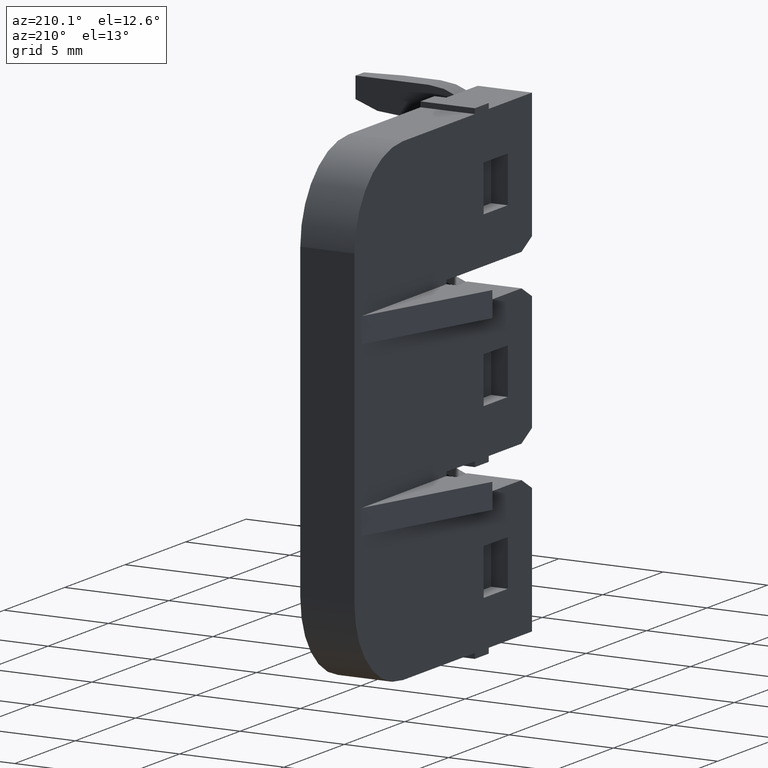
[diagram: clean part render]
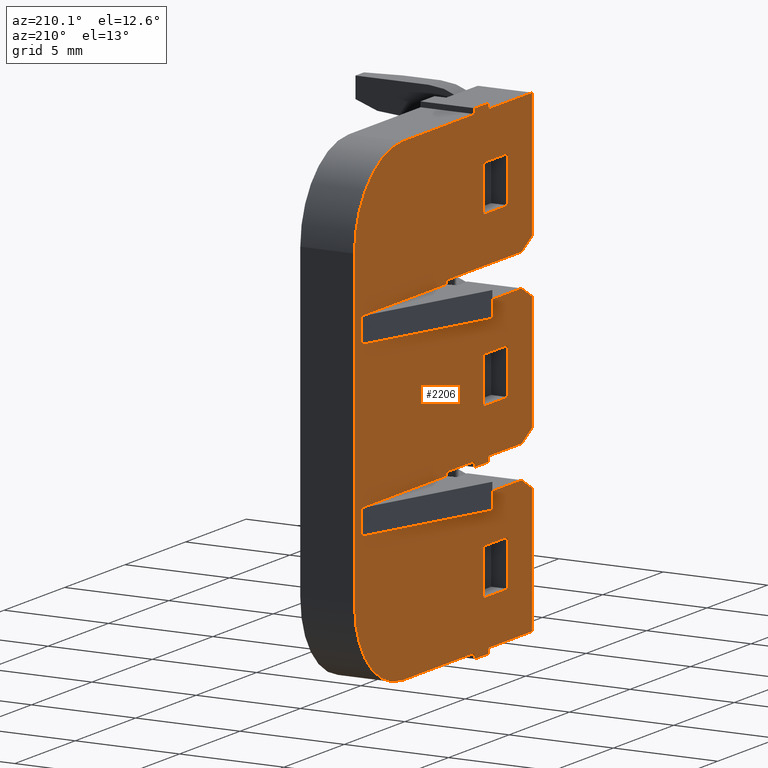
[diagram: same view with one face highlighted and labeled with its STEP entity id]
A machine part, auxiliary view. The second image highlights one B-rep face of the part: STEP entity #2206.
In plain terms, the highlighted planar face has unit normal (1, 0, -0).
Its self-contained STEP definition (entity closure, byte-faithful):
#97 = LINE ( 'NONE', #118, #1239 ) ;
#112 = LINE ( 'NONE', #140, #1243 ) ;
#118 = CARTESIAN_POINT ( 'NONE',  ( 1492.445209356660100, 1094.934526901996200, 15.50000000190685000 ) ) ;
#126 = DIRECTION ( 'NONE',  ( 3.497202527569245500E-015, 9.239259932875879000E-031, 1.000000000000000000 ) ) ;
#140 = CARTESIAN_POINT ( 'NONE',  ( 1492.445209356660100, 1094.934526901996200, -15.54999999809330000 ) ) ;
#149 = LINE ( 'NONE', #204, #1258 ) ;
#154 = CARTESIAN_POINT ( 'NONE',  ( 1492.445209356660100, 1090.934526901996200, 3.350000000000000100 ) ) ;
#157 = DIRECTION ( 'NONE',  ( 0.0000000000000000000, 1.000000000000000000, 8.673617379884027600E-016 ) ) ;
#164 = CARTESIAN_POINT ( 'NONE',  ( 1492.445209356660100, 1094.934526901996200, -15.54999999809330000 ) ) ;
#169 = DIRECTION ( 'NONE',  ( -1.000000000000000000, -3.538835890992685300E-015, 3.497202527569245500E-015 ) ) ;
#172 = DIRECTION ( 'NONE',  ( -3.538835890992685300E-015, 1.000000000000000000, -7.422753022654887400E-029 ) ) ;
#174 = LINE ( 'NONE', #164, #1263 ) ;
#182 = DIRECTION ( 'NONE',  ( 3.538835890992685300E-015, -1.000000000000000000, 7.422753022654887400E-029 ) ) ;
#183 = LINE ( 'NONE', #223, #1279 ) ;
#188 = CARTESIAN_POINT ( 'NONE',  ( 1492.445209356660100, 1094.334526901996000, -7.649999998093229600 ) ) ;
#195 = DIRECTION ( 'NONE',  ( 3.538835890992685300E-015, -1.000000000000000000, 1.096746120592191800E-016 ) ) ;
#200 = DIRECTION ( 'NONE',  ( -3.309741457870194800E-015, -2.521813793387425100E-016, -1.000000000000000000 ) ) ;
#204 = CARTESIAN_POINT ( 'NONE',  ( 1492.445209356660100, 1084.984526901990000, -15.64999999809315100 ) ) ;
#219 = LINE ( 'NONE', #188, #1288 ) ;
#223 = CARTESIAN_POINT ( 'NONE',  ( 1492.445209356660100, 1087.334526901996000, -7.574999998093219700 ) ) ;
#227 = DIRECTION ( 'NONE',  ( 0.0000000000000000000, 0.0000000000000000000, -1.000000000000000000 ) ) ;
#235 = LINE ( 'NONE', #237, #1274 ) ;
#237 = CARTESIAN_POINT ( 'NONE',  ( 1492.445209356660100, 1083.984526901990200, -15.79999999809320100 ) ) ;
#247 = DIRECTION ( 'NONE',  ( 0.0000000000000000000, -1.000000000000000000, -5.306212985340710000E-014 ) ) ;
#256 = LINE ( 'NONE', #269, #1290 ) ;
#264 = DIRECTION ( 'NONE',  ( 3.538835890992685300E-015, -1.000000000000000000, -1.096746120591573800E-016 ) ) ;
#269 = CARTESIAN_POINT ( 'NONE',  ( 1492.445209356660100, 1087.334526901996000, 0.5749999999999999600 ) ) ;
#521 = ORIENTED_EDGE ( 'NONE', *, *, #2094, .T. ) ;
#530 = ORIENTED_EDGE ( 'NONE', *, *, #1945, .T. ) ;
#540 = ORIENTED_EDGE ( 'NONE', *, *, #1989, .T. ) ;
#542 = ORIENTED_EDGE ( 'NONE', *, *, #2095, .F. ) ;
#543 = ORIENTED_EDGE ( 'NONE', *, *, #1767, .T. ) ;
#544 = ORIENTED_EDGE ( 'NONE', *, *, #2104, .F. ) ;
#551 = ORIENTED_EDGE ( 'NONE', *, *, #1934, .T. ) ;
#559 = ORIENTED_EDGE ( 'NONE', *, *, #2123, .T. ) ;
#562 = ORIENTED_EDGE ( 'NONE', *, *, #1962, .T. ) ;
#564 = ORIENTED_EDGE ( 'NONE', *, *, #1926, .F. ) ;
#570 = ORIENTED_EDGE ( 'NONE', *, *, #2092, .T. ) ;
#580 = ORIENTED_EDGE ( 'NONE', *, *, #2040, .F. ) ;
#582 = ORIENTED_EDGE ( 'NONE', *, *, #2129, .F. ) ;
#589 = ORIENTED_EDGE ( 'NONE', *, *, #1974, .F. ) ;
#591 = ORIENTED_EDGE ( 'NONE', *, *, #2097, .T. ) ;
#592 = ORIENTED_EDGE ( 'NONE', *, *, #2017, .F. ) ;
#593 = ORIENTED_EDGE ( 'NONE', *, *, #1879, .T. ) ;
#594 = ORIENTED_EDGE ( 'NONE', *, *, #2085, .T. ) ;
#595 = ORIENTED_EDGE ( 'NONE', *, *, #2126, .T. ) ;
#596 = ORIENTED_EDGE ( 'NONE', *, *, #1964, .T. ) ;
#599 = ORIENTED_EDGE ( 'NONE', *, *, #1918, .F. ) ;
#601 = ORIENTED_EDGE ( 'NONE', *, *, #2146, .T. ) ;
#602 = ORIENTED_EDGE ( 'NONE', *, *, #1995, .T. ) ;
#605 = ORIENTED_EDGE ( 'NONE', *, *, #2131, .T. ) ;
#607 = ORIENTED_EDGE ( 'NONE', *, *, #2116, .T. ) ;
#608 = ORIENTED_EDGE ( 'NONE', *, *, #2093, .T. ) ;
#609 = ORIENTED_EDGE ( 'NONE', *, *, #1990, .T. ) ;
#611 = ORIENTED_EDGE ( 'NONE', *, *, #2000, .T. ) ;
#613 = ORIENTED_EDGE ( 'NONE', *, *, #2138, .T. ) ;
#614 = ORIENTED_EDGE ( 'NONE', *, *, #2297, .T. ) ;
#615 = ORIENTED_EDGE ( 'NONE', *, *, #1940, .T. ) ;
#617 = ORIENTED_EDGE ( 'NONE', *, *, #2145, .F. ) ;
#618 = ORIENTED_EDGE ( 'NONE', *, *, #2277, .T. ) ;
#619 = ORIENTED_EDGE ( 'NONE', *, *, #1955, .F. ) ;
#621 = ORIENTED_EDGE ( 'NONE', *, *, #2133, .T. ) ;
#628 = ORIENTED_EDGE ( 'NONE', *, *, #2147, .T. ) ;
#629 = ORIENTED_EDGE ( 'NONE', *, *, #1998, .T. ) ;
#630 = ORIENTED_EDGE ( 'NONE', *, *, #2096, .T. ) ;
#631 = ORIENTED_EDGE ( 'NONE', *, *, #1984, .F. ) ;
#632 = ORIENTED_EDGE ( 'NONE', *, *, #2067, .F. ) ;
#634 = ORIENTED_EDGE ( 'NONE', *, *, #2077, .F. ) ;
#638 = ORIENTED_EDGE ( 'NONE', *, *, #1880, .T. ) ;
#643 = ORIENTED_EDGE ( 'NONE', *, *, #2065, .F. ) ;
#650 = ORIENTED_EDGE ( 'NONE', *, *, #2072, .T. ) ;
#656 = ORIENTED_EDGE ( 'NONE', *, *, #2140, .T. ) ;
#658 = ORIENTED_EDGE ( 'NONE', *, *, #2119, .T. ) ;
#667 = ORIENTED_EDGE ( 'NONE', *, *, #1954, .T. ) ;
#679 = ORIENTED_EDGE ( 'NONE', *, *, #2066, .T. ) ;
#680 = ORIENTED_EDGE ( 'NONE', *, *, #2083, .F. ) ;
#685 = ORIENTED_EDGE ( 'NONE', *, *, #2127, .T. ) ;
#688 = ORIENTED_EDGE ( 'NONE', *, *, #2059, .T. ) ;
#702 = ORIENTED_EDGE ( 'NONE', *, *, #1983, .T. ) ;
#705 = ORIENTED_EDGE ( 'NONE', *, *, #2114, .T. ) ;
#706 = ORIENTED_EDGE ( 'NONE', *, *, #2130, .T. ) ;
#763 = LINE ( 'NONE', #770, #1683 ) ;
#770 = CARTESIAN_POINT ( 'NONE',  ( 1492.445209356660100, 1082.259529724810100, 15.50000000190685000 ) ) ;
#775 = DIRECTION ( 'NONE',  ( -3.497202527569245500E-015, -1.237602582263238000E-029, -1.000000000000000000 ) ) ;
#1075 = CARTESIAN_POINT ( 'NONE',  ( 1492.445209356660100, 1094.934526901996200, 7.349999999999998800 ) ) ;
#1077 = DIRECTION ( 'NONE',  ( -3.538835890992685300E-015, 1.000000000000000000, 1.225863708862687000E-029 ) ) ;
#1078 = DIRECTION ( 'NONE',  ( 0.0000000000000000000, 1.000000000000000000, 0.0000000000000000000 ) ) ;
#1088 = CARTESIAN_POINT ( 'NONE',  ( 1492.445209356660100, 1090.934526901996200, -11.54999999809322000 ) ) ;
#1096 = DIRECTION ( 'NONE',  ( -1.000000000000000000, -3.538835890992685300E-015, 3.497202527569245500E-015 ) ) ;
#1105 = LINE ( 'NONE', #1075, #1220 ) ;
#1174 = AXIS2_PLACEMENT_3D ( 'NONE', #1088, #1096, #1078 ) ;
#1213 = CIRCLE ( 'NONE', #1174, 4.000000000000003600 ) ;
#1220 = VECTOR ( 'NONE', #1077, 1000.000000000000000 ) ;
#1236 = CIRCLE ( 'NONE', #1260, 4.000000000000003600 ) ;
#1239 = VECTOR ( 'NONE', #126, 1000.000000000000000 ) ;
#1243 = VECTOR ( 'NONE', #172, 1000.000000000000000 ) ;
#1258 = VECTOR ( 'NONE', #227, 1000.000000000000000 ) ;
#1260 = AXIS2_PLACEMENT_3D ( 'NONE', #154, #169, #157 ) ;
#1263 = VECTOR ( 'NONE', #182, 1000.000000000000000 ) ;
#1274 = VECTOR ( 'NONE', #247, 1000.000000000000000 ) ;
#1279 = VECTOR ( 'NONE', #195, 1000.000000000000000 ) ;
#1280 = VECTOR ( 'NONE', #3640, 1000.000000000000000 ) ;
#1288 = VECTOR ( 'NONE', #200, 1000.000000000000000 ) ;
#1290 = VECTOR ( 'NONE', #264, 1000.000000000000000 ) ;
#1300 = VECTOR ( 'NONE', #3605, 1000.000000000000000 ) ;
#1301 = VECTOR ( 'NONE', #3636, 1000.000000000000000 ) ;
#1312 = VECTOR ( 'NONE', #3669, 1000.000000000000000 ) ;
#1314 = VECTOR ( 'NONE', #3672, 1000.000000000000000 ) ;
#1325 = VECTOR ( 'NONE', #3686, 1000.000000000000000 ) ;
#1327 = VECTOR ( 'NONE', #3658, 1000.000000000000000 ) ;
#1335 = VECTOR ( 'NONE', #3695, 1000.000000000000000 ) ;
#1339 = VECTOR ( 'NONE', #3666, 1000.000000000000000 ) ;
#1355 = VECTOR ( 'NONE', #3853, 1000.000000000000000 ) ;
#1358 = VECTOR ( 'NONE', #3927, 1000.000000000000000 ) ;
#1361 = VECTOR ( 'NONE', #3788, 1000.000000000000000 ) ;
#1379 = VECTOR ( 'NONE', #3898, 1000.000000000000100 ) ;
#1380 = VECTOR ( 'NONE', #3871, 1000.000000000000000 ) ;
#1385 = VECTOR ( 'NONE', #3863, 1000.000000000000000 ) ;
#1386 = VECTOR ( 'NONE', #3893, 1000.000000000000000 ) ;
#1400 = VECTOR ( 'NONE', #3949, 1000.000000000000000 ) ;
#1401 = VECTOR ( 'NONE', #3951, 1000.000000000000000 ) ;
#1405 = VECTOR ( 'NONE', #3950, 1000.000000000000000 ) ;
#1407 = VECTOR ( 'NONE', #3938, 1000.000000000000000 ) ;
#1410 = VECTOR ( 'NONE', #3937, 1000.000000000000000 ) ;
#1414 = VECTOR ( 'NONE', #3957, 1000.000000000000000 ) ;
#1415 = VECTOR ( 'NONE', #3966, 1000.000000000000000 ) ;
#1416 = VECTOR ( 'NONE', #3969, 1000.000000000000100 ) ;
#1423 = VECTOR ( 'NONE', #4096, 1000.000000000000000 ) ;
#1425 = VECTOR ( 'NONE', #4105, 1000.000000000000000 ) ;
#1429 = VECTOR ( 'NONE', #4166, 1000.000000000000000 ) ;
#1437 = VECTOR ( 'NONE', #4060, 1000.000000000000000 ) ;
#1440 = VECTOR ( 'NONE', #4029, 1000.000000000000000 ) ;
#1449 = VECTOR ( 'NONE', #4061, 1000.000000000000000 ) ;
#1451 = VECTOR ( 'NONE', #4065, 1000.000000000000100 ) ;
#1452 = VECTOR ( 'NONE', #4077, 1000.000000000000000 ) ;
#1454 = VECTOR ( 'NONE', #4106, 1000.000000000000000 ) ;
#1459 = VECTOR ( 'NONE', #4084, 1000.000000000000000 ) ;
#1461 = VECTOR ( 'NONE', #4051, 1000.000000000000000 ) ;
#1466 = VECTOR ( 'NONE', #3990, 1000.000000000000000 ) ;
#1467 = VECTOR ( 'NONE', #4047, 1000.000000000000100 ) ;
#1472 = VECTOR ( 'NONE', #4064, 1000.000000000000000 ) ;
#1473 = VECTOR ( 'NONE', #4091, 1000.000000000000000 ) ;
#1477 = VECTOR ( 'NONE', #4161, 1000.000000000000000 ) ;
#1502 = AXIS2_PLACEMENT_3D ( 'NONE', #3274, #3288, #3266 ) ;
#1549 = VECTOR ( 'NONE', #4523, 1000.000000000000000 ) ;
#1605 = VECTOR ( 'NONE', #4602, 1000.000000000000000 ) ;
#1683 = VECTOR ( 'NONE', #775, 1000.000000000000000 ) ;
#1767 = EDGE_CURVE ( 'NONE', #2788, #2779, #763, .T. ) ;
#1879 = EDGE_CURVE ( 'NONE', #2859, #2881, #1213, .T. ) ;
#1880 = EDGE_CURVE ( 'NONE', #2814, #2866, #1105, .T. ) ;
#1918 = EDGE_CURVE ( 'NONE', #2859, #2908, #97, .T. ) ;
#1926 = EDGE_CURVE ( 'NONE', #2906, #2896, #112, .T. ) ;
#1934 = EDGE_CURVE ( 'NONE', #2881, #2880, #174, .T. ) ;
#1940 = EDGE_CURVE ( 'NONE', #2866, #2908, #1236, .T. ) ;
#1945 = EDGE_CURVE ( 'NONE', #2880, #2889, #149, .T. ) ;
#1954 = EDGE_CURVE ( 'NONE', #2918, #2886, #183, .T. ) ;
#1955 = EDGE_CURVE ( 'NONE', #2918, #2875, #219, .T. ) ;
#1962 = EDGE_CURVE ( 'NONE', #2889, #2879, #235, .T. ) ;
#1964 = EDGE_CURVE ( 'NONE', #2927, #2920, #256, .T. ) ;
#1974 = EDGE_CURVE ( 'NONE', #2875, #2966, #3621, .T. ) ;
#1983 = EDGE_CURVE ( 'NONE', #2872, #2927, #3634, .T. ) ;
#1984 = EDGE_CURVE ( 'NONE', #2872, #2926, #3642, .T. ) ;
#1989 = EDGE_CURVE ( 'NONE', #2879, #2896, #3673, .T. ) ;
#1990 = EDGE_CURVE ( 'NONE', #2912, #2923, #3693, .T. ) ;
#1995 = EDGE_CURVE ( 'NONE', #2923, #2814, #3667, .T. ) ;
#1998 = EDGE_CURVE ( 'NONE', #2903, #2912, #3677, .T. ) ;
#2000 = EDGE_CURVE ( 'NONE', #2920, #2877, #3683, .T. ) ;
#2017 = EDGE_CURVE ( 'NONE', #2903, #2893, #3720, .T. ) ;
#2040 = EDGE_CURVE ( 'NONE', #2948, #2906, #3808, .T. ) ;
#2059 = EDGE_CURVE ( 'NONE', #2952, #2926, #3840, .T. ) ;
#2065 = EDGE_CURVE ( 'NONE', #3043, #3049, #3868, .T. ) ;
#2066 = EDGE_CURVE ( 'NONE', #2949, #3053, #3848, .T. ) ;
#2067 = EDGE_CURVE ( 'NONE', #3049, #2886, #3879, .T. ) ;
#2072 = EDGE_CURVE ( 'NONE', #3053, #2796, #3915, .T. ) ;
#2077 = EDGE_CURVE ( 'NONE', #3017, #2997, #3925, .T. ) ;
#2083 = EDGE_CURVE ( 'NONE', #2997, #2996, #3947, .T. ) ;
#2085 = EDGE_CURVE ( 'NONE', #3013, #3028, #3906, .T. ) ;
#2092 = EDGE_CURVE ( 'NONE', #2779, #2993, #3974, .T. ) ;
#2093 = EDGE_CURVE ( 'NONE', #2992, #2893, #3964, .T. ) ;
#2094 = EDGE_CURVE ( 'NONE', #3018, #2788, #3973, .T. ) ;
#2095 = EDGE_CURVE ( 'NONE', #2966, #3047, #3968, .T. ) ;
#2096 = EDGE_CURVE ( 'NONE', #3019, #3052, #3955, .T. ) ;
#2097 = EDGE_CURVE ( 'NONE', #3005, #2952, #3931, .T. ) ;
#2104 = EDGE_CURVE ( 'NONE', #3047, #2932, #3970, .T. ) ;
#2114 = EDGE_CURVE ( 'NONE', #2937, #2773, #4055, .T. ) ;
#2116 = EDGE_CURVE ( 'NONE', #3052, #3013, #4046, .T. ) ;
#2119 = EDGE_CURVE ( 'NONE', #3028, #3030, #4059, .T. ) ;
#2123 = EDGE_CURVE ( 'NONE', #2993, #3018, #4058, .T. ) ;
#2126 = EDGE_CURVE ( 'NONE', #2935, #3046, #4057, .T. ) ;
#2127 = EDGE_CURVE ( 'NONE', #3016, #2992, #4027, .T. ) ;
#2129 = EDGE_CURVE ( 'NONE', #2932, #2948, #4039, .T. ) ;
#2130 = EDGE_CURVE ( 'NONE', #2877, #3016, #4080, .T. ) ;
#2131 = EDGE_CURVE ( 'NONE', #2976, #2944, #4118, .T. ) ;
#2133 = EDGE_CURVE ( 'NONE', #2944, #2937, #4040, .T. ) ;
#2138 = EDGE_CURVE ( 'NONE', #2760, #2949, #4099, .T. ) ;
#2140 = EDGE_CURVE ( 'NONE', #3046, #2996, #4092, .T. ) ;
#2145 = EDGE_CURVE ( 'NONE', #3019, #3017, #4116, .T. ) ;
#2146 = EDGE_CURVE ( 'NONE', #3030, #3005, #4145, .T. ) ;
#2147 = EDGE_CURVE ( 'NONE', #3043, #2935, #4155, .T. ) ;
#2206 = ADVANCED_FACE ( 'NONE', ( #3293, #3305, #3284, #3306 ), #3279, .F. ) ;
#2277 = EDGE_CURVE ( 'NONE', #2773, #2976, #4506, .T. ) ;
#2297 = EDGE_CURVE ( 'NONE', #2796, #2760, #4575, .T. ) ;
#2760 = VERTEX_POINT ( 'NONE', #4903 ) ;
#2773 = VERTEX_POINT ( 'NONE', #4919 ) ;
#2779 = VERTEX_POINT ( 'NONE', #4875 ) ;
#2788 = VERTEX_POINT ( 'NONE', #4877 ) ;
#2796 = VERTEX_POINT ( 'NONE', #4922 ) ;
#2814 = VERTEX_POINT ( 'NONE', #4928 ) ;
#2859 = VERTEX_POINT ( 'NONE', #4294 ) ;
#2866 = VERTEX_POINT ( 'NONE', #4325 ) ;
#2872 = VERTEX_POINT ( 'NONE', #4320 ) ;
#2875 = VERTEX_POINT ( 'NONE', #4300 ) ;
#2877 = VERTEX_POINT ( 'NONE', #4313 ) ;
#2879 = VERTEX_POINT ( 'NONE', #4326 ) ;
#2880 = VERTEX_POINT ( 'NONE', #4285 ) ;
#2881 = VERTEX_POINT ( 'NONE', #4317 ) ;
#2886 = VERTEX_POINT ( 'NONE', #4324 ) ;
#2889 = VERTEX_POINT ( 'NONE', #4291 ) ;
#2893 = VERTEX_POINT ( 'NONE', #4293 ) ;
#2896 = VERTEX_POINT ( 'NONE', #4298 ) ;
#2903 = VERTEX_POINT ( 'NONE', #4371 ) ;
#2906 = VERTEX_POINT ( 'NONE', #4338 ) ;
#2908 = VERTEX_POINT ( 'NONE', #4386 ) ;
#2912 = VERTEX_POINT ( 'NONE', #4370 ) ;
#2918 = VERTEX_POINT ( 'NONE', #4352 ) ;
#2920 = VERTEX_POINT ( 'NONE', #4376 ) ;
#2923 = VERTEX_POINT ( 'NONE', #4375 ) ;
#2926 = VERTEX_POINT ( 'NONE', #4396 ) ;
#2927 = VERTEX_POINT ( 'NONE', #4393 ) ;
#2932 = VERTEX_POINT ( 'NONE', #4349 ) ;
#2935 = VERTEX_POINT ( 'NONE', #4364 ) ;
#2937 = VERTEX_POINT ( 'NONE', #4377 ) ;
#2944 = VERTEX_POINT ( 'NONE', #4379 ) ;
#2948 = VERTEX_POINT ( 'NONE', #4353 ) ;
#2949 = VERTEX_POINT ( 'NONE', #4381 ) ;
#2952 = VERTEX_POINT ( 'NONE', #4382 ) ;
#2966 = VERTEX_POINT ( 'NONE', #4405 ) ;
#2976 = VERTEX_POINT ( 'NONE', #4399 ) ;
#2992 = VERTEX_POINT ( 'NONE', #4402 ) ;
#2993 = VERTEX_POINT ( 'NONE', #4431 ) ;
#2996 = VERTEX_POINT ( 'NONE', #4419 ) ;
#2997 = VERTEX_POINT ( 'NONE', #4427 ) ;
#3005 = VERTEX_POINT ( 'NONE', #4448 ) ;
#3013 = VERTEX_POINT ( 'NONE', #4415 ) ;
#3016 = VERTEX_POINT ( 'NONE', #4409 ) ;
#3017 = VERTEX_POINT ( 'NONE', #4400 ) ;
#3018 = VERTEX_POINT ( 'NONE', #4440 ) ;
#3019 = VERTEX_POINT ( 'NONE', #4437 ) ;
#3028 = VERTEX_POINT ( 'NONE', #4410 ) ;
#3030 = VERTEX_POINT ( 'NONE', #4441 ) ;
#3043 = VERTEX_POINT ( 'NONE', #4403 ) ;
#3046 = VERTEX_POINT ( 'NONE', #4444 ) ;
#3047 = VERTEX_POINT ( 'NONE', #4445 ) ;
#3049 = VERTEX_POINT ( 'NONE', #4449 ) ;
#3052 = VERTEX_POINT ( 'NONE', #4447 ) ;
#3053 = VERTEX_POINT ( 'NONE', #4417 ) ;
#3129 = EDGE_LOOP ( 'NONE', ( #621, #705, #618, #605 ) ) ;
#3161 = EDGE_LOOP ( 'NONE', ( #521, #543, #570, #559 ) ) ;
#3162 = EDGE_LOOP ( 'NONE', ( #551, #530, #562, #540, #564, #580, #582, #544, #542, #589, #619, #667, #632, #643, #628, #595, #656, #680, #634, #617, #630, #607, #594, #658, #601, #591, #688, #631, #702, #596, #611, #706, #685, #608, #592, #629, #609, #602, #638, #615, #599, #593 ) ) ;
#3172 = EDGE_LOOP ( 'NONE', ( #679, #650, #614, #613 ) ) ;
#3266 = DIRECTION ( 'NONE',  ( -3.497202527569245500E-015, 2.468694079174335000E-016, -1.000000000000000000 ) ) ;
#3274 = CARTESIAN_POINT ( 'NONE',  ( 1492.445209356660100, 1094.934526901996200, 15.50000000190685000 ) ) ;
#3279 = PLANE ( 'NONE',  #1502 ) ;
#3284 = FACE_BOUND ( 'NONE', #3172, .T. ) ;
#3288 = DIRECTION ( 'NONE',  ( 1.000000000000000000, 3.538835890992685300E-015, -3.497202527569244700E-015 ) ) ;
#3293 = FACE_BOUND ( 'NONE', #3161, .T. ) ;
#3305 = FACE_OUTER_BOUND ( 'NONE', #3162, .T. ) ;
#3306 = FACE_BOUND ( 'NONE', #3129, .T. ) ;
#3605 = DIRECTION ( 'NONE',  ( 3.538835890992685300E-015, -1.000000000000000000, -1.096746120591573800E-016 ) ) ;
#3611 = CARTESIAN_POINT ( 'NONE',  ( 1492.445209356660100, 1087.334526901996000, -0.6250000000000000000 ) ) ;
#3615 = CARTESIAN_POINT ( 'NONE',  ( 1492.445209356660100, 1094.334526901996000, -0.5500000000000000400 ) ) ;
#3620 = CARTESIAN_POINT ( 'NONE',  ( 1492.445209356660100, 1087.334526901996000, -8.774999998093230500 ) ) ;
#3621 = LINE ( 'NONE', #3620, #1280 ) ;
#3634 = LINE ( 'NONE', #3615, #1301 ) ;
#3636 = DIRECTION ( 'NONE',  ( 3.190924781433425100E-015, -2.521813793386575100E-016, 1.000000000000000000 ) ) ;
#3640 = DIRECTION ( 'NONE',  ( 3.538835890992685300E-015, -1.000000000000000000, 1.096746120592191800E-016 ) ) ;
#3642 = LINE ( 'NONE', #3611, #1300 ) ;
#3649 = CARTESIAN_POINT ( 'NONE',  ( 1492.445209356660100, 1083.834526901990100, -15.12478542923365100 ) ) ;
#3658 = DIRECTION ( 'NONE',  ( 0.0000000000000000000, 0.0000000000000000000, 1.000000000000000000 ) ) ;
#3664 = CARTESIAN_POINT ( 'NONE',  ( 1492.445209356660100, 1083.984526901990200, 7.599999999999999600 ) ) ;
#3665 = CARTESIAN_POINT ( 'NONE',  ( 1492.445209356660100, 1084.984526901990000, 7.449999999999920200 ) ) ;
#3666 = DIRECTION ( 'NONE',  ( 0.0000000000000000000, 1.000000000000000000, -5.510298100161510100E-014 ) ) ;
#3667 = LINE ( 'NONE', #3665, #1312 ) ;
#3669 = DIRECTION ( 'NONE',  ( 0.0000000000000000000, 0.0000000000000000000, -1.000000000000000000 ) ) ;
#3670 = CARTESIAN_POINT ( 'NONE',  ( 1492.445209356660100, 1087.334526901996000, 7.349999999999999600 ) ) ;
#3672 = DIRECTION ( 'NONE',  ( 3.250333119651810100E-015, -2.521813793386570200E-016, 1.000000000000000000 ) ) ;
#3673 = LINE ( 'NONE', #3649, #1327 ) ;
#3676 = CARTESIAN_POINT ( 'NONE',  ( 1492.445209356660100, 1083.834526901990100, 6.924785431140400700 ) ) ;
#3677 = LINE ( 'NONE', #3676, #1325 ) ;
#3683 = LINE ( 'NONE', #3670, #1314 ) ;
#3686 = DIRECTION ( 'NONE',  ( 0.0000000000000000000, 0.0000000000000000000, 1.000000000000000000 ) ) ;
#3693 = LINE ( 'NONE', #3664, #1339 ) ;
#3694 = CARTESIAN_POINT ( 'NONE',  ( 1492.445209356660100, 1094.934526901996200, 7.349999999999999600 ) ) ;
#3695 = DIRECTION ( 'NONE',  ( 3.538835890992685300E-015, -1.000000000000000000, -1.225863708862687000E-029 ) ) ;
#3720 = LINE ( 'NONE', #3694, #1335 ) ;
#3788 = DIRECTION ( 'NONE',  ( -3.250333119651810100E-015, -2.521813793387420200E-016, -1.000000000000000000 ) ) ;
#3808 = LINE ( 'NONE', #3818, #1361 ) ;
#3818 = CARTESIAN_POINT ( 'NONE',  ( 1492.445209356664000, 1080.259529724810100, -15.54999999809330000 ) ) ;
#3840 = LINE ( 'NONE', #3861, #1380 ) ;
#3848 = LINE ( 'NONE', #3869, #1385 ) ;
#3853 = DIRECTION ( 'NONE',  ( -3.663735981263015800E-015, 1.000000000000000000, -4.682231220498579100E-017 ) ) ;
#3861 = CARTESIAN_POINT ( 'NONE',  ( 1492.445209356660100, 1087.334526901996000, 7.200000000000000200 ) ) ;
#3863 = DIRECTION ( 'NONE',  ( 3.497202527569245500E-015, 1.237602582263238000E-029, 1.000000000000000000 ) ) ;
#3868 = LINE ( 'NONE', #3880, #1355 ) ;
#3869 = CARTESIAN_POINT ( 'NONE',  ( 1492.445209356660100, 1084.259529724810100, 15.50000000190685000 ) ) ;
#3871 = DIRECTION ( 'NONE',  ( 3.250333119651810100E-015, -2.521813793386570200E-016, 1.000000000000000000 ) ) ;
#3879 = LINE ( 'NONE', #3909, #1358 ) ;
#3880 = CARTESIAN_POINT ( 'NONE',  ( 1492.445209356660100, 1094.934526901996200, -7.399999998093240300 ) ) ;
#3891 = CARTESIAN_POINT ( 'NONE',  ( 1492.445209356664000, 1080.259529724810100, -6.899999998093239400 ) ) ;
#3893 = DIRECTION ( 'NONE',  ( 3.538835890992685300E-015, -1.000000000000000000, -1.150239550150604000E-029 ) ) ;
#3898 = DIRECTION ( 'NONE',  ( -4.798054992358794100E-015, 0.8660254037844383700, -0.5000000000000003300 ) ) ;
#3906 = LINE ( 'NONE', #3971, #1415 ) ;
#3909 = CARTESIAN_POINT ( 'NONE',  ( 1492.445209356660100, 1087.334526901996000, -15.39999999809330000 ) ) ;
#3915 = LINE ( 'NONE', #3928, #1386 ) ;
#3925 = LINE ( 'NONE', #3891, #1379 ) ;
#3927 = DIRECTION ( 'NONE',  ( -3.250333119651810100E-015, -2.521813793387420200E-016, -1.000000000000000000 ) ) ;
#3928 = CARTESIAN_POINT ( 'NONE',  ( 1492.445209356660100, 1094.934526901996200, -11.14999999809333900 ) ) ;
#3931 = LINE ( 'NONE', #3933, #1407 ) ;
#3933 = CARTESIAN_POINT ( 'NONE',  ( 1492.445209356660100, 1094.934526901996200, -0.8000000000000000400 ) ) ;
#3935 = CARTESIAN_POINT ( 'NONE',  ( 1492.445209356660100, 1087.334526901996000, -15.54999999809330000 ) ) ;
#3937 = DIRECTION ( 'NONE',  ( 3.250333119651810100E-015, -2.521813793386570200E-016, 1.000000000000000000 ) ) ;
#3938 = DIRECTION ( 'NONE',  ( -3.663735981263015800E-015, 1.000000000000000000, 4.682231220492459300E-017 ) ) ;
#3939 = CARTESIAN_POINT ( 'NONE',  ( 1492.445209356660100, 1094.934526901996200, -7.399999998093240300 ) ) ;
#3946 = CARTESIAN_POINT ( 'NONE',  ( 1492.445209356660100, 1094.934526901996200, -5.199999998093259600 ) ) ;
#3947 = LINE ( 'NONE', #3939, #1414 ) ;
#3949 = DIRECTION ( 'NONE',  ( -3.538835890992685300E-015, 1.000000000000000000, 1.150239550150604000E-029 ) ) ;
#3950 = DIRECTION ( 'NONE',  ( 3.538835890992685300E-015, -1.000000000000000000, -1.150239550150604000E-029 ) ) ;
#3951 = DIRECTION ( 'NONE',  ( -3.250333119651810100E-015, -2.521813793387420200E-016, -1.000000000000000000 ) ) ;
#3952 = CARTESIAN_POINT ( 'NONE',  ( 1492.445209356664000, 1080.259529724810100, 7.349999999999999600 ) ) ;
#3953 = CARTESIAN_POINT ( 'NONE',  ( 1492.445209356660100, 1094.934526901996200, -3.000000000000000000 ) ) ;
#3955 = LINE ( 'NONE', #3967, #1416 ) ;
#3957 = DIRECTION ( 'NONE',  ( -3.663735981263015800E-015, 1.000000000000000000, -4.682231220498579100E-017 ) ) ;
#3964 = LINE ( 'NONE', #3952, #1410 ) ;
#3966 = DIRECTION ( 'NONE',  ( 0.0000000000000000000, 0.0000000000000000000, 1.000000000000000000 ) ) ;
#3967 = CARTESIAN_POINT ( 'NONE',  ( 1492.445209356664000, 1080.259529724810100, -1.300000000000000000 ) ) ;
#3968 = LINE ( 'NONE', #3935, #1401 ) ;
#3969 = DIRECTION ( 'NONE',  ( -1.547721872706975700E-015, 0.8660254037844383700, 0.5000000000000003300 ) ) ;
#3970 = LINE ( 'NONE', #4009, #1466 ) ;
#3971 = CARTESIAN_POINT ( 'NONE',  ( 1492.445209356660100, 1083.834526901990100, -1.225214566952860000 ) ) ;
#3973 = LINE ( 'NONE', #3953, #1405 ) ;
#3974 = LINE ( 'NONE', #3946, #1400 ) ;
#3990 = DIRECTION ( 'NONE',  ( 3.663735981263015800E-015, -1.000000000000000000, 1.096746120592179900E-016 ) ) ;
#4009 = CARTESIAN_POINT ( 'NONE',  ( 1492.445209356660100, 1094.934526901996200, -8.949999998093240100 ) ) ;
#4026 = CARTESIAN_POINT ( 'NONE',  ( 1492.445209356660100, 1084.259529724810100, 15.50000000190685000 ) ) ;
#4027 = LINE ( 'NONE', #4062, #1451 ) ;
#4028 = CARTESIAN_POINT ( 'NONE',  ( 1492.445209356660100, 1094.934526901996200, -0.8000000000000000400 ) ) ;
#4029 = DIRECTION ( 'NONE',  ( -3.663735981263015800E-015, 1.000000000000000000, 4.682231220492459300E-017 ) ) ;
#4030 = CARTESIAN_POINT ( 'NONE',  ( 1492.445209356660100, 1083.984526901990200, -0.5499999980932880300 ) ) ;
#4037 = CARTESIAN_POINT ( 'NONE',  ( 1492.445209356660100, 1094.934526901996200, 5.150000000000000400 ) ) ;
#4039 = LINE ( 'NONE', #4044, #1467 ) ;
#4040 = LINE ( 'NONE', #4113, #1454 ) ;
#4044 = CARTESIAN_POINT ( 'NONE',  ( 1492.445209356664000, 1080.259529724810100, -9.449999998093238300 ) ) ;
#4046 = LINE ( 'NONE', #4028, #1440 ) ;
#4047 = DIRECTION ( 'NONE',  ( 1.547721872706970800E-015, -0.8660254037844383700, -0.5000000000000003300 ) ) ;
#4051 = DIRECTION ( 'NONE',  ( 3.497202527569245500E-015, 1.237602582263238000E-029, 1.000000000000000000 ) ) ;
#4055 = LINE ( 'NONE', #4037, #1437 ) ;
#4057 = LINE ( 'NONE', #4063, #1472 ) ;
#4058 = LINE ( 'NONE', #4026, #1461 ) ;
#4059 = LINE ( 'NONE', #4030, #1449 ) ;
#4060 = DIRECTION ( 'NONE',  ( 3.538835890992685300E-015, -1.000000000000000000, -1.150239550150604000E-029 ) ) ;
#4061 = DIRECTION ( 'NONE',  ( 0.0000000000000000000, 1.000000000000000000, -5.510298100161510100E-014 ) ) ;
#4062 = CARTESIAN_POINT ( 'NONE',  ( 1492.445209356664000, 1080.259529724810100, 1.250000000000000000 ) ) ;
#4063 = CARTESIAN_POINT ( 'NONE',  ( 1492.445209356660100, 1083.984526901990200, -7.649999999999999500 ) ) ;
#4064 = DIRECTION ( 'NONE',  ( 0.0000000000000000000, -1.000000000000000000, -5.510298100161510100E-014 ) ) ;
#4065 = DIRECTION ( 'NONE',  ( 4.798054992358783100E-015, -0.8660254037844383700, 0.5000000000000003300 ) ) ;
#4072 = CARTESIAN_POINT ( 'NONE',  ( 1492.445209356660100, 1094.934526901996200, 2.949999999999999700 ) ) ;
#4074 = CARTESIAN_POINT ( 'NONE',  ( 1492.445209356660100, 1094.934526901996200, -13.34999999809334000 ) ) ;
#4075 = CARTESIAN_POINT ( 'NONE',  ( 1492.445209356664000, 1080.259529724810100, -15.39999999809330000 ) ) ;
#4077 = DIRECTION ( 'NONE',  ( -3.250333119651810100E-015, -2.521813793387420200E-016, -1.000000000000000000 ) ) ;
#4080 = LINE ( 'NONE', #4083, #1459 ) ;
#4083 = CARTESIAN_POINT ( 'NONE',  ( 1492.445209356660100, 1094.934526901996200, 0.7500000000000000000 ) ) ;
#4084 = DIRECTION ( 'NONE',  ( 3.663735981263015800E-015, -1.000000000000000000, -1.096746120591567900E-016 ) ) ;
#4091 = DIRECTION ( 'NONE',  ( -3.538835890992685300E-015, 1.000000000000000000, 1.150239550150604000E-029 ) ) ;
#4092 = LINE ( 'NONE', #4107, #1423 ) ;
#4096 = DIRECTION ( 'NONE',  ( 0.0000000000000000000, 0.0000000000000000000, 1.000000000000000000 ) ) ;
#4099 = LINE ( 'NONE', #4074, #1473 ) ;
#4105 = DIRECTION ( 'NONE',  ( -3.538835890992685300E-015, 1.000000000000000000, 1.150239550150604000E-029 ) ) ;
#4106 = DIRECTION ( 'NONE',  ( 3.497202527569245500E-015, 1.237602582263238000E-029, 1.000000000000000000 ) ) ;
#4107 = CARTESIAN_POINT ( 'NONE',  ( 1492.445209356660100, 1083.834526901990100, -6.974785431140389800 ) ) ;
#4113 = CARTESIAN_POINT ( 'NONE',  ( 1492.445209356660100, 1084.259529724810100, 7.349999999999999600 ) ) ;
#4116 = LINE ( 'NONE', #4075, #1452 ) ;
#4118 = LINE ( 'NONE', #4072, #1425 ) ;
#4121 = CARTESIAN_POINT ( 'NONE',  ( 1492.445209356660100, 1084.984526901990000, -7.499999999999920100 ) ) ;
#4145 = LINE ( 'NONE', #4164, #1477 ) ;
#4155 = LINE ( 'NONE', #4121, #1429 ) ;
#4161 = DIRECTION ( 'NONE',  ( 0.0000000000000000000, 0.0000000000000000000, -1.000000000000000000 ) ) ;
#4164 = CARTESIAN_POINT ( 'NONE',  ( 1492.445209356660100, 1084.984526901990000, -0.6999999980933360200 ) ) ;
#4166 = DIRECTION ( 'NONE',  ( 0.0000000000000000000, 0.0000000000000000000, -1.000000000000000000 ) ) ;
#4285 = CARTESIAN_POINT ( 'NONE',  ( 1492.445209356660100, 1084.984526901990000, -15.54999999809330000 ) ) ;
#4291 = CARTESIAN_POINT ( 'NONE',  ( 1492.445209356660100, 1084.984526901990000, -15.79999999809318300 ) ) ;
#4293 = CARTESIAN_POINT ( 'NONE',  ( 1492.445209356660100, 1080.259529724810100, 7.349999999999999600 ) ) ;
#4294 = CARTESIAN_POINT ( 'NONE',  ( 1492.445209356660100, 1094.934526901996200, -11.54999999809325200 ) ) ;
#4298 = CARTESIAN_POINT ( 'NONE',  ( 1492.445209356660100, 1083.834526901990100, -15.54999999809330000 ) ) ;
#4300 = CARTESIAN_POINT ( 'NONE',  ( 1492.445209356660100, 1094.334526901995800, -8.774999998093230500 ) ) ;
#4313 = CARTESIAN_POINT ( 'NONE',  ( 1492.445209356660100, 1087.334526901996000, 0.7500000000000000000 ) ) ;
#4317 = CARTESIAN_POINT ( 'NONE',  ( 1492.445209356660100, 1090.934526901996200, -15.54999999809330000 ) ) ;
#4320 = CARTESIAN_POINT ( 'NONE',  ( 1492.445209356660100, 1094.334526901996000, -0.6249999999999998900 ) ) ;
#4324 = CARTESIAN_POINT ( 'NONE',  ( 1492.445209356660100, 1087.334526901996000, -7.574999998093218800 ) ) ;
#4325 = CARTESIAN_POINT ( 'NONE',  ( 1492.445209356660100, 1090.934526901996200, 7.349999999999999600 ) ) ;
#4326 = CARTESIAN_POINT ( 'NONE',  ( 1492.445209356660100, 1083.834526901990100, -15.79999999809324200 ) ) ;
#4338 = CARTESIAN_POINT ( 'NONE',  ( 1492.445209356660100, 1080.259529724810100, -15.54999999809330000 ) ) ;
#4349 = CARTESIAN_POINT ( 'NONE',  ( 1492.445209356664000, 1081.125555128594000, -8.949999998093240100 ) ) ;
#4352 = CARTESIAN_POINT ( 'NONE',  ( 1492.445209356660100, 1094.334526901995800, -7.574999998093217900 ) ) ;
#4353 = CARTESIAN_POINT ( 'NONE',  ( 1492.445209356664000, 1080.259529724810100, -9.449999998093238300 ) ) ;
#4364 = CARTESIAN_POINT ( 'NONE',  ( 1492.445209356660100, 1084.984526901990000, -7.649999999999930200 ) ) ;
#4370 = CARTESIAN_POINT ( 'NONE',  ( 1492.445209356660100, 1083.834526901990100, 7.600000000000021800 ) ) ;
#4371 = CARTESIAN_POINT ( 'NONE',  ( 1492.445209356660100, 1083.834526901990100, 7.349999999999999600 ) ) ;
#4375 = CARTESIAN_POINT ( 'NONE',  ( 1492.445209356660100, 1084.984526901990000, 7.599999999999958800 ) ) ;
#4376 = CARTESIAN_POINT ( 'NONE',  ( 1492.445209356660100, 1087.334526901996000, 0.5749999999999995100 ) ) ;
#4377 = CARTESIAN_POINT ( 'NONE',  ( 1492.445209356660100, 1084.259529724810100, 5.150000000000000400 ) ) ;
#4379 = CARTESIAN_POINT ( 'NONE',  ( 1492.445209356660100, 1084.259529724810100, 2.949999999999999700 ) ) ;
#4381 = CARTESIAN_POINT ( 'NONE',  ( 1492.445209356660100, 1084.259529724810100, -13.34999999809334000 ) ) ;
#4382 = CARTESIAN_POINT ( 'NONE',  ( 1492.445209356660100, 1087.334526901996000, -0.8000000000000000400 ) ) ;
#4386 = CARTESIAN_POINT ( 'NONE',  ( 1492.445209356660100, 1094.934526901996200, 3.350000000000009400 ) ) ;
#4393 = CARTESIAN_POINT ( 'NONE',  ( 1492.445209356660100, 1094.334526901996000, 0.5749999999999990700 ) ) ;
#4396 = CARTESIAN_POINT ( 'NONE',  ( 1492.445209356660100, 1087.334526901996000, -0.6250000000000014400 ) ) ;
#4399 = CARTESIAN_POINT ( 'NONE',  ( 1492.445209356660100, 1082.259529724810100, 2.949999999999999700 ) ) ;
#4400 = CARTESIAN_POINT ( 'NONE',  ( 1492.445209356664000, 1080.259529724810100, -6.899999998093239400 ) ) ;
#4402 = CARTESIAN_POINT ( 'NONE',  ( 1492.445209356664000, 1080.259529724810100, 1.250000000000000000 ) ) ;
#4403 = CARTESIAN_POINT ( 'NONE',  ( 1492.445209356660100, 1084.984526901990000, -7.399999998093219800 ) ) ;
#4405 = CARTESIAN_POINT ( 'NONE',  ( 1492.445209356660100, 1087.334526901996000, -8.774999998093232300 ) ) ;
#4409 = CARTESIAN_POINT ( 'NONE',  ( 1492.445209356664000, 1081.125555128594000, 0.7500000000000000000 ) ) ;
#4410 = CARTESIAN_POINT ( 'NONE',  ( 1492.445209356660100, 1083.834526901990100, -0.5499999980932800400 ) ) ;
#4415 = CARTESIAN_POINT ( 'NONE',  ( 1492.445209356660100, 1083.834526901990100, -0.8000000000000000400 ) ) ;
#4417 = CARTESIAN_POINT ( 'NONE',  ( 1492.445209356660100, 1084.259529724810100, -11.14999999809333900 ) ) ;
#4419 = CARTESIAN_POINT ( 'NONE',  ( 1492.445209356660100, 1083.834526901990100, -7.399999998093240300 ) ) ;
#4427 = CARTESIAN_POINT ( 'NONE',  ( 1492.445209356664000, 1081.125555128594000, -7.399999998093240300 ) ) ;
#4431 = CARTESIAN_POINT ( 'NONE',  ( 1492.445209356660100, 1084.259529724810100, -5.199999998093259600 ) ) ;
#4437 = CARTESIAN_POINT ( 'NONE',  ( 1492.445209356664000, 1080.259529724810100, -1.300000000000000000 ) ) ;
#4440 = CARTESIAN_POINT ( 'NONE',  ( 1492.445209356660100, 1084.259529724810100, -3.000000000000000000 ) ) ;
#4441 = CARTESIAN_POINT ( 'NONE',  ( 1492.445209356660100, 1084.984526901990000, -0.5499999980933433200 ) ) ;
#4444 = CARTESIAN_POINT ( 'NONE',  ( 1492.445209356660100, 1083.834526901990100, -7.649999999999993200 ) ) ;
#4445 = CARTESIAN_POINT ( 'NONE',  ( 1492.445209356660100, 1087.334526901996000, -8.949999998093240100 ) ) ;
#4447 = CARTESIAN_POINT ( 'NONE',  ( 1492.445209356664000, 1081.125555128594000, -0.8000000000000000400 ) ) ;
#4448 = CARTESIAN_POINT ( 'NONE',  ( 1492.445209356660100, 1084.984526901990000, -0.8000000000000000400 ) ) ;
#4449 = CARTESIAN_POINT ( 'NONE',  ( 1492.445209356660100, 1087.334526901996000, -7.399999998093240300 ) ) ;
#4506 = LINE ( 'NONE', #4538, #1549 ) ;
#4523 = DIRECTION ( 'NONE',  ( -3.497202527569245500E-015, -1.237602582263238000E-029, -1.000000000000000000 ) ) ;
#4538 = CARTESIAN_POINT ( 'NONE',  ( 1492.445209356660100, 1082.259529724810100, 7.349999999999999600 ) ) ;
#4575 = LINE ( 'NONE', #4584, #1605 ) ;
#4584 = CARTESIAN_POINT ( 'NONE',  ( 1492.445209356660100, 1082.259529724810100, 15.50000000190685000 ) ) ;
#4602 = DIRECTION ( 'NONE',  ( -3.497202527569245500E-015, -1.237602582263238000E-029, -1.000000000000000000 ) ) ;
#4875 = CARTESIAN_POINT ( 'NONE',  ( 1492.445209356660100, 1082.259529724810100, -5.199999998093259600 ) ) ;
#4877 = CARTESIAN_POINT ( 'NONE',  ( 1492.445209356660100, 1082.259529724810100, -3.000000000000000000 ) ) ;
#4903 = CARTESIAN_POINT ( 'NONE',  ( 1492.445209356660100, 1082.259529724810100, -13.34999999809334000 ) ) ;
#4919 = CARTESIAN_POINT ( 'NONE',  ( 1492.445209356660100, 1082.259529724810100, 5.150000000000000400 ) ) ;
#4922 = CARTESIAN_POINT ( 'NONE',  ( 1492.445209356660100, 1082.259529724810100, -11.14999999809333900 ) ) ;
#4928 = CARTESIAN_POINT ( 'NONE',  ( 1492.445209356660100, 1084.984526901990000, 7.349999999999999600 ) ) ;